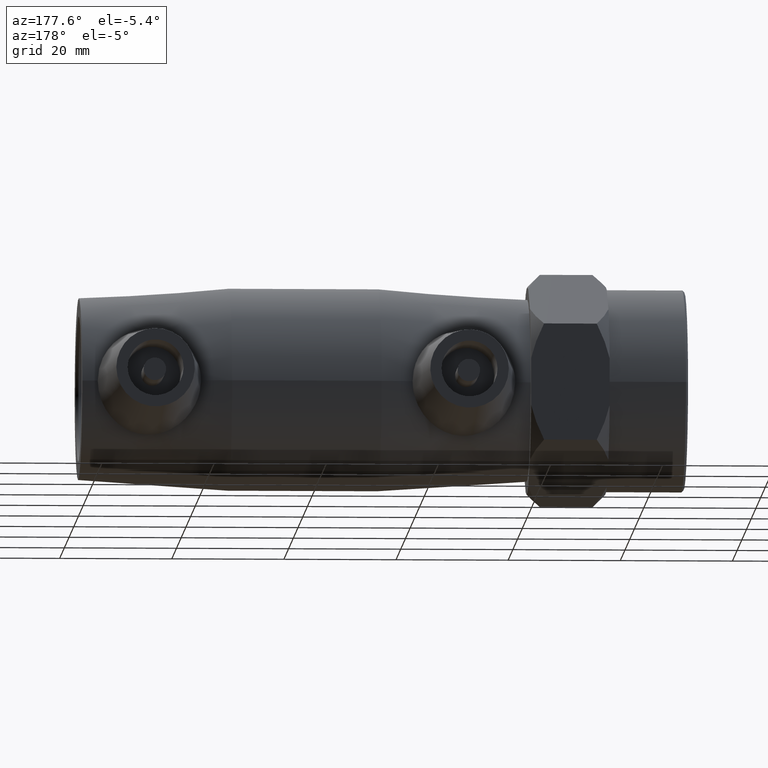
[diagram: clean part render]
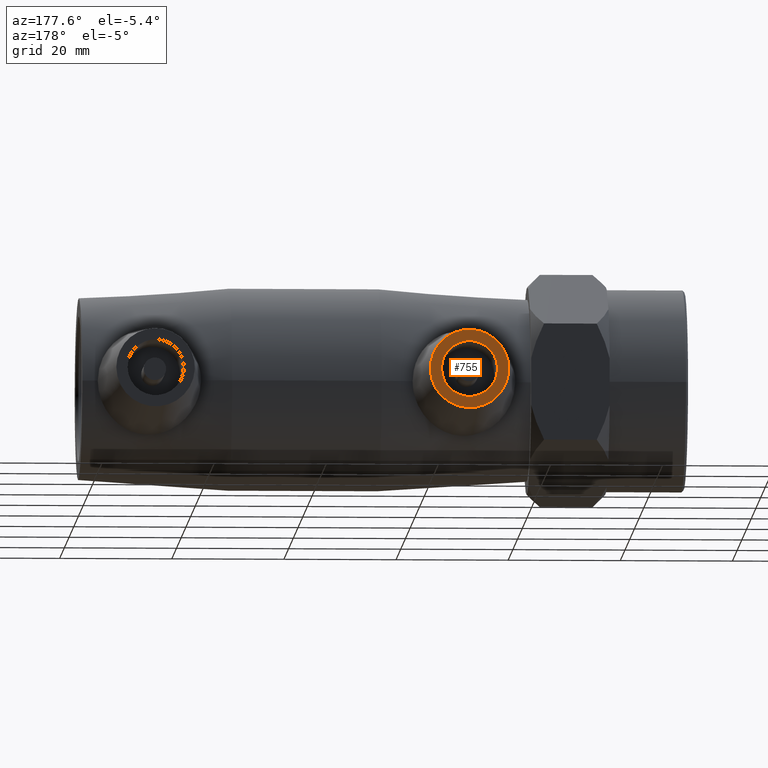
[diagram: same view with one face highlighted and labeled with its STEP entity id]
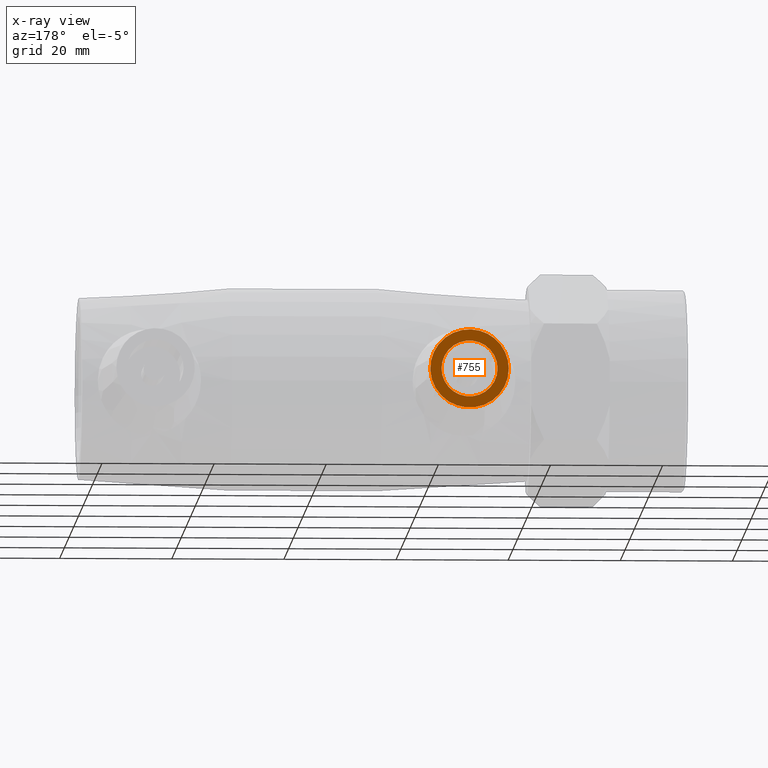
[diagram: x-ray of the same camera — body ghosted, the highlighted face saturated]
A machine part, auxiliary view. The second image highlights one B-rep face of the part: STEP entity #755.
The next image is the same camera in x-ray: the body ghosted, the highlighted face saturated — about 0% of this face is hidden behind the body in this view.
In plain terms, the highlighted planar face has unit normal (0, 1, 0).
Its self-contained STEP definition (entity closure, byte-faithful):
#119=PLANE('',#849);
#140=FACE_BOUND('',#268,.T.);
#196=FACE_OUTER_BOUND('',#267,.T.);
#267=EDGE_LOOP('',(#668));
#268=EDGE_LOOP('',(#669));
#328=CIRCLE('',#847,5.);
#329=CIRCLE('',#850,7.);
#397=VERTEX_POINT('',#1328);
#398=VERTEX_POINT('',#1332);
#492=EDGE_CURVE('',#397,#397,#328,.T.);
#493=EDGE_CURVE('',#398,#398,#329,.T.);
#668=ORIENTED_EDGE('',*,*,#493,.F.);
#669=ORIENTED_EDGE('',*,*,#492,.T.);
#755=ADVANCED_FACE('',(#196,#140),#119,.T.);
#847=AXIS2_PLACEMENT_3D('',#1329,#1051,#1052);
#849=AXIS2_PLACEMENT_3D('',#1331,#1055,#1056);
#850=AXIS2_PLACEMENT_3D('',#1333,#1057,#1058);
#1051=DIRECTION('center_axis',(0.,-1.,0.));
#1052=DIRECTION('ref_axis',(-1.,0.,0.));
#1055=DIRECTION('center_axis',(0.,1.,0.));
#1056=DIRECTION('ref_axis',(0.,0.,1.));
#1057=DIRECTION('center_axis',(0.,-1.,0.));
#1058=DIRECTION('ref_axis',(1.,0.,0.));
#1328=CARTESIAN_POINT('',(-23.,42.,-6.12323399573677E-16));
#1329=CARTESIAN_POINT('Origin',(-28.,42.,0.));
#1331=CARTESIAN_POINT('Origin',(-28.,42.,1.32169407693471E-16));
#1332=CARTESIAN_POINT('',(-35.,42.,8.57252759403147E-16));
#1333=CARTESIAN_POINT('Origin',(-28.,42.,0.));